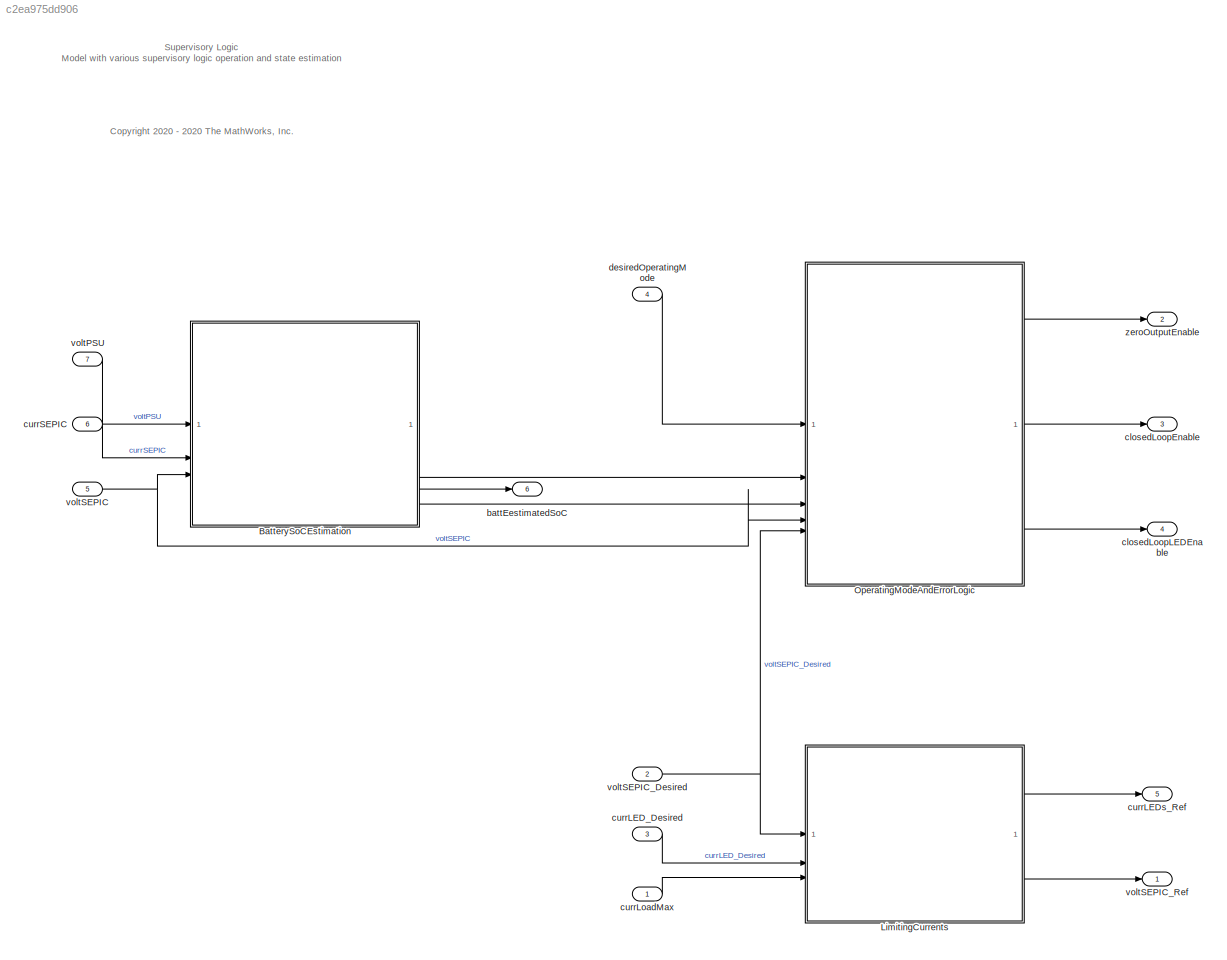
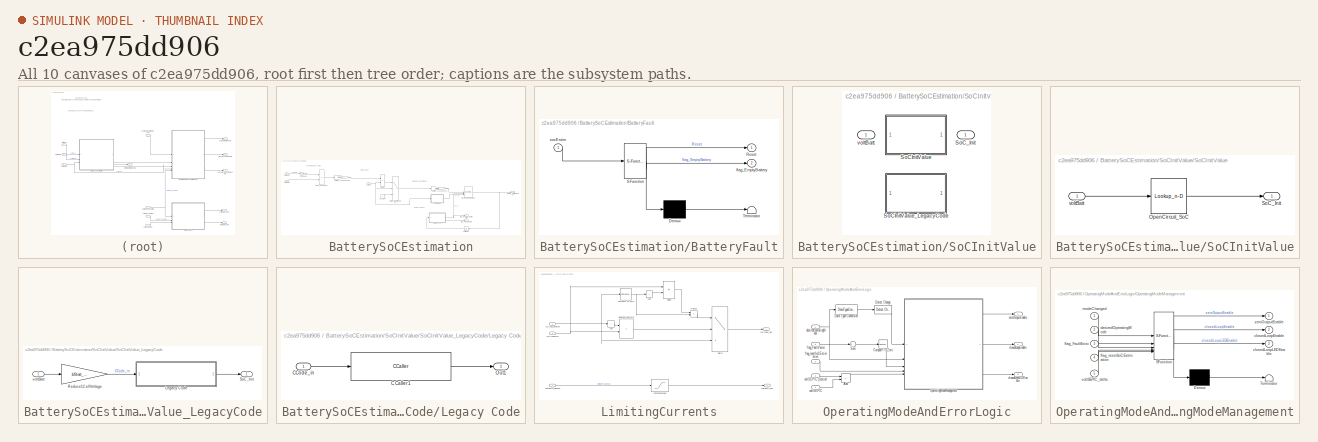
[diagram: thumbnail index - all 10 canvases of the model, root first then tree order]
MODEL slx_c2ea975dd906
KIND model
CONFIG AbsTol = auto
CONFIG EnableMultiTasking = on
CONFIG FixedStep = ts
CONFIG MaxStep = 0.2
CONFIG MinStep = auto
CONFIG RelTol = 1e-3
CONFIG SampleTimeConstraint = Unconstrained
CONFIG SolverName = FixedStepDiscrete
CONFIG StartTime = 0.0
CONFIG StopTime = 12
WORKSPACE source: mxarray member
WORKSPACE TsModel = 0.1
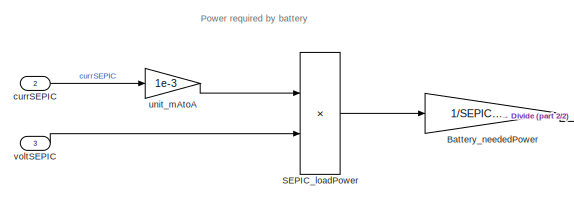
[diagram: BatterySoCEstimation - part 1/2, top left region]
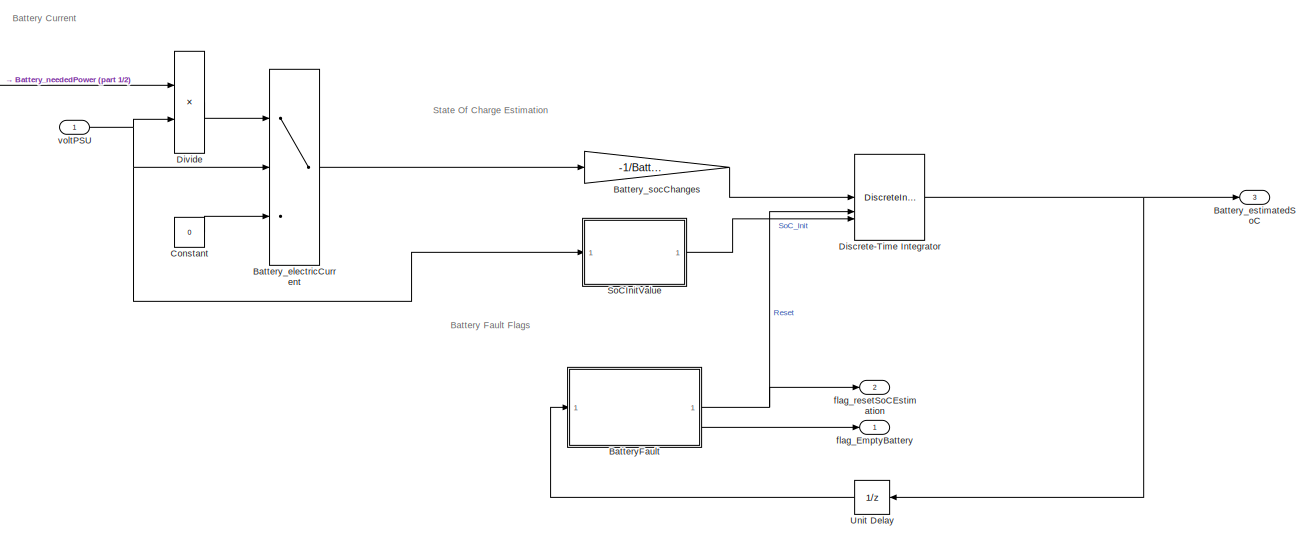
[diagram: BatterySoCEstimation - part 2/2, center side, full height]
BLOCK [SubSystem] BatterySoCEstimation
BLOCK [SubSystem] BatterySoCEstimation/BatteryFault
  ErrorFcn = Stateflow.Translate.translate
  PermitHierarchicalResolution = ExplicitOnly
  SFBlockType = Chart
  TreatAsAtomicUnit = on
BLOCK [Demux] BatterySoCEstimation/BatteryFault/ Demux 
  Outputs = 1
BLOCK [S-Function] BatterySoCEstimation/BatteryFault/ SFunction 
  EnableBusSupport = on
  FunctionName = sf_sfun
  PortCounts = [1 3]
  SFcnIsStateOwnerBlock = off
  SFunctionDeploymentMode = off
  Tag = Stateflow S-Function 1
BLOCK [Terminator] BatterySoCEstimation/BatteryFault/ Terminator 
BLOCK [Outport] BatterySoCEstimation/BatteryFault/Reset
  VectorParamsAs1DForOutWhenUnconnected = off
BLOCK [Outport] BatterySoCEstimation/BatteryFault/flag_EmptyBattery
  Port = 2
BLOCK [Inport] BatterySoCEstimation/BatteryFault/socEstim
BLOCK [Switch] BatterySoCEstimation/Battery_electricCurrent
  Criteria = u2 > Threshold
  InputSameDT = off
  SaturateOnIntegerOverflow = off
BLOCK [Outport] BatterySoCEstimation/Battery_estimatedSoC
  OutDataTypeStr = single
  Port = 3
  PortDimensions = 1
  SamplingMode = Sample based
  SignalType = real
  Unit = 1
  VectorParamsAs1DForOutWhenUnconnected = off
BLOCK [Gain] BatterySoCEstimation/Battery_neededPower
  Gain = 1/SEPIC_Efficiency
BLOCK [Gain] BatterySoCEstimation/Battery_socChanges
  Gain = -1/Batt_MaxCoulomb
BLOCK [Constant] BatterySoCEstimation/Constant
  OutDataTypeStr = single
  Value = 0
BLOCK [DiscreteIntegrator] BatterySoCEstimation/Discrete-Time Integrator
  ExternalReset = falling
  ICPrevOutput = DiscIntNeverNeededParam
  ICPrevScaledInput = DiscIntNeverNeededParam
  InitialConditionSetting = Auto
  InitialConditionSource = external
  LimitOutput = on
  LowerSaturationLimit = 0
  OutDataTypeStr = single
  SampleTime = -1
  UpperSaturationLimit = 1
BLOCK [Product] BatterySoCEstimation/Divide
  Inputs = */
BLOCK [Product] BatterySoCEstimation/SEPIC_loadPower
BLOCK [SubSystem] BatterySoCEstimation/SoCInitValue
  LabelModeActiveChoice = Simulink_LUT
  Variant = on
  VariantControl = Variant1
  VariantControlMode = label
BLOCK [Outport] BatterySoCEstimation/SoCInitValue/ SoC_Init
  VectorParamsAs1DForOutWhenUnconnected = off
BLOCK [SubSystem] BatterySoCEstimation/SoCInitValue/SoCInitValue
  VariantControl = Simulink_LUT
BLOCK [Lookup_n-D] BatterySoCEstimation/SoCInitValue/SoCInitValue/OpenCircuit_SoC
  BreakpointsForDimension1 = Batt_Em0_LUT*Batt_nrCellSeries
  InputPortMap = u0
  InternalRulePriority = Speed
  NumberOfTableDimensions = 1
  OutMax = 1
  OutMin = 0
  RndMeth = Simplest
  Table = Batt_SoC_LUT
BLOCK [Outport] BatterySoCEstimation/SoCInitValue/SoCInitValue/SoC_Init
  VectorParamsAs1DForOutWhenUnconnected = off
BLOCK [Inport] BatterySoCEstimation/SoCInitValue/SoCInitValue/voltBatt
BLOCK [SubSystem] BatterySoCEstimation/SoCInitValue/SoCInitValue_LegacyCode
  VariantControl = CCode_LUT
BLOCK [SubSystem] BatterySoCEstimation/SoCInitValue/SoCInitValue_LegacyCode/Legacy Code
BLOCK [CCaller] BatterySoCEstimation/SoCInitValue/SoCInitValue_LegacyCode/Legacy Code/C Caller1
  FunctionName = EmLiIon_LUT
  PortSpecificationStruct = %)30     .    R ,   8    (     @         %    "     (    !     0         %  0 "0    $    _    07)G3F%M90  4&]R=$YA;64 4V-O<&4     26YD97@     5'EP90      4VEZ90      27-';&]B86P   X    P    !@    @    $          4    (     0    ,    !         !   P!O=70 #@   #     &    "     0         !0    @    !     P    $         $  # &]U=  .    .     8    (    !          %    "     $    &     0         0    !@...<+904ch>
BLOCK [Inport] BatterySoCEstimation/SoCInitValue/SoCInitValue_LegacyCode/Legacy Code/CCode_in
BLOCK [Outport] BatterySoCEstimation/SoCInitValue/SoCInitValue_LegacyCode/Legacy Code/Out1
  VectorParamsAs1DForOutWhenUnconnected = off
BLOCK [Gain] BatterySoCEstimation/SoCInitValue/SoCInitValue_LegacyCode/Reduce1CellVoltage
  Gain = 1/Batt_nrCellSeries
BLOCK [Outport] BatterySoCEstimation/SoCInitValue/SoCInitValue_LegacyCode/SoC_Init
  VectorParamsAs1DForOutWhenUnconnected = off
BLOCK [Inport] BatterySoCEstimation/SoCInitValue/SoCInitValue_LegacyCode/voltBatt
BLOCK [Inport] BatterySoCEstimation/SoCInitValue/voltBatt 
BLOCK [UnitDelay] BatterySoCEstimation/Unit Delay
  HasFrameUpgradeWarning = on
  NameLocation = top
  SampleTime = -1
BLOCK [Inport] BatterySoCEstimation/currSEPIC
  OutDataTypeStr = single
  Port = 2
  PortDimensions = 1
  SamplingMode = Sample based
  SignalType = real
  Unit = mA
BLOCK [Outport] BatterySoCEstimation/flag_EmptyBattery
  OutDataTypeStr = boolean
  PortDimensions = 1
  SamplingMode = Sample based
  SignalType = real
  Unit = 1
  VectorParamsAs1DForOutWhenUnconnected = off
BLOCK [Outport] BatterySoCEstimation/flag_resetSoCEstimation
  OutDataTypeStr = boolean
  Port = 2
  PortDimensions = 1
  SamplingMode = Sample based
  SignalType = real
  Unit = 1
  VectorParamsAs1DForOutWhenUnconnected = off
BLOCK [Gain] BatterySoCEstimation/unit_mAtoA
  Gain = 1e-3
BLOCK [Inport] BatterySoCEstimation/voltPSU
  OutDataTypeStr = single
  PortDimensions = 1
  SamplingMode = Sample based
  SignalType = real
  Unit = V
BLOCK [Inport] BatterySoCEstimation/voltSEPIC
  Port = 3
BLOCK [SubSystem] LimitingCurrents
BLOCK [Sum] LimitingCurrents/Add
  IconShape = rectangular
  Inputs = +
BLOCK [Sum] LimitingCurrents/Add1
  IconShape = rectangular
  Inputs = +
BLOCK [Reference] LimitingCurrents/Compare To Zero  REF=simulink/Logic and Bit
Operations/Compare
To Zero
  SourceBlock = simulink/Logic and Bit\nOperations/Compare\nTo Zero
  SourceType = Compare To Zero
BLOCK [Product] LimitingCurrents/Divide
  Inputs = */
BLOCK [Saturate] LimitingCurrents/LimitingVoltages
  LowerLimit = 0
  UpperLimit = voltSEPICMax
BLOCK [Product] LimitingCurrents/Product
BLOCK [RelationalOperator] LimitingCurrents/Relational Operator
  InputSameDT = off
  Operator = >
  OutDataTypeStr = boolean
  RndMeth = Simplest
BLOCK [Switch] LimitingCurrents/Switch
  Criteria = u2 > Threshold
  InputSameDT = off
  SaturateOnIntegerOverflow = off
BLOCK [Inport] LimitingCurrents/currLED_Desired
  Port = 2
BLOCK [Outport] LimitingCurrents/currLEDs_Ref
BLOCK [Inport] LimitingCurrents/currLoadMax
  Port = 3
BLOCK [Inport] LimitingCurrents/voltSEPIC_Desired
  OutDataTypeStr = single
  PortDimensions = 1
  SamplingMode = Sample based
  SignalType = real
BLOCK [Outport] LimitingCurrents/voltSEPIC_Ref
  OutDataTypeStr = single
  Port = 2
  PortDimensions = 1
  SamplingMode = Sample based
  SignalType = real
BLOCK [SubSystem] OperatingModeAndErrorLogic
BLOCK [Sum] OperatingModeAndErrorLogic/Add
  IconShape = rectangular
  Inputs = +-
BLOCK [Reference] OperatingModeAndErrorLogic/Compare To Zero  REF=simulink/Logic and Bit
Operations/Compare
To Zero
  SourceBlock = simulink/Logic and Bit\nOperations/Compare\nTo Zero
  SourceType = Compare To Zero
BLOCK [DataTypeConversion] OperatingModeAndErrorLogic/Data Type Conversion
  OutDataTypeStr = uint16
  RndMeth = Floor
  SaturateOnIntegerOverflow = off
BLOCK [Reference] OperatingModeAndErrorLogic/Detect Change  REF=simulink/Logic and Bit
Operations/Detect
Change
  SourceBlock = simulink/Logic and Bit\nOperations/Detect\nChange
  SourceType = Detect Change
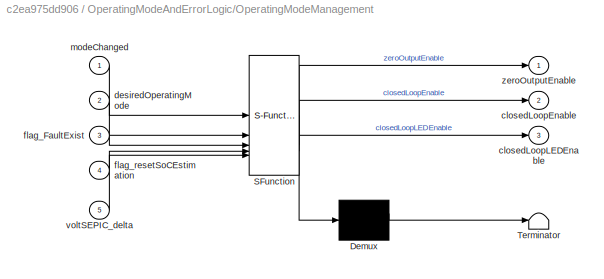
BLOCK [SubSystem] OperatingModeAndErrorLogic/OperatingModeManagement
  ErrorFcn = Stateflow.Translate.translate
  PermitHierarchicalResolution = ExplicitOnly
  SFBlockType = Chart
  TreatAsAtomicUnit = on
BLOCK [Demux] OperatingModeAndErrorLogic/OperatingModeManagement/ Demux 
  Outputs = 1
BLOCK [S-Function] OperatingModeAndErrorLogic/OperatingModeManagement/ SFunction 
  EnableBusSupport = on
  FunctionName = sf_sfun
  PortCounts = [5 4]
  SFcnIsStateOwnerBlock = off
  SFunctionDeploymentMode = off
  Tag = Stateflow S-Function 2
BLOCK [Terminator] OperatingModeAndErrorLogic/OperatingModeManagement/ Terminator 
BLOCK [Outport] OperatingModeAndErrorLogic/OperatingModeManagement/closedLoopEnable
  Port = 2
BLOCK [Outport] OperatingModeAndErrorLogic/OperatingModeManagement/closedLoopLEDEnable
  Port = 3
BLOCK [Inport] OperatingModeAndErrorLogic/OperatingModeManagement/desiredOperatingMode
  Port = 2
BLOCK [Inport] OperatingModeAndErrorLogic/OperatingModeManagement/flag_FaultExist
  Port = 3
BLOCK [Inport] OperatingModeAndErrorLogic/OperatingModeManagement/flag_resetSoCEstimation
  Port = 4
BLOCK [Inport] OperatingModeAndErrorLogic/OperatingModeManagement/modeChanged
BLOCK [Inport] OperatingModeAndErrorLogic/OperatingModeManagement/voltSEPIC_delta
  Port = 5
BLOCK [Outport] OperatingModeAndErrorLogic/OperatingModeManagement/zeroOutputEnable
BLOCK [Sum] OperatingModeAndErrorLogic/Sum
  Inputs = +
BLOCK [Outport] OperatingModeAndErrorLogic/closedLoopEnable
  OutDataTypeStr = boolean
  Port = 2
  PortDimensions = 1
  SamplingMode = Sample based
  SignalType = real
  Unit = 1
BLOCK [Outport] OperatingModeAndErrorLogic/closedLoopLEDEnable
  OutDataTypeStr = boolean
  Port = 3
  PortDimensions = 1
  SamplingMode = Sample based
  SignalType = real
  Unit = 1
BLOCK [Inport] OperatingModeAndErrorLogic/desiredOperatingMode
BLOCK [Inport] OperatingModeAndErrorLogic/flag_FaultVector
  Port = 2
BLOCK [Inport] OperatingModeAndErrorLogic/flag_resetSoCEstimation
  Port = 3
BLOCK [Inport] OperatingModeAndErrorLogic/voltSEPIC
  Port = 4
BLOCK [Inport] OperatingModeAndErrorLogic/voltSEPIC_Desired
  Port = 5
BLOCK [Outport] OperatingModeAndErrorLogic/zeroOutputEnable
  OutDataTypeStr = boolean
  PortDimensions = 1
  SamplingMode = Sample based
  SignalType = real
  Unit = 1
BLOCK [Outport] battEestimatedSoC
  OutDataTypeStr = single
  Port = 6
  PortDimensions = 1
  SampleTime = TsModel
  SamplingMode = Sample based
  SignalType = real
BLOCK [Outport] closedLoopEnable
  OutDataTypeStr = boolean
  Port = 3
  PortDimensions = 1
  SampleTime = TsModel
  SamplingMode = Sample based
  SignalType = real
  Unit = 1
BLOCK [Outport] closedLoopLEDEnable
  OutDataTypeStr = boolean
  Port = 4
  PortDimensions = 1
  SampleTime = TsModel
  SamplingMode = Sample based
  SignalType = real
  Unit = 1
BLOCK [Inport] currLED_Desired
  OutDataTypeStr = single
  Port = 3
  PortDimensions = [6 1]
  SampleTime = TsModel
  SamplingMode = Sample based
  SignalType = real
  Unit = mA
BLOCK [Outport] currLEDs_Ref
  OutDataTypeStr = single
  Port = 5
  PortDimensions = [6 1 ]
  SampleTime = TsModel
  SamplingMode = Sample based
  SignalType = real
  Unit = mA
BLOCK [Inport] currLoadMax
  OutDataTypeStr = single
  PortDimensions = 1
  SampleTime = TsModel
  SamplingMode = Sample based
  SignalType = real
BLOCK [Inport] currSEPIC
  OutDataTypeStr = single
  Port = 6
  PortDimensions = 1
  SampleTime = TsModel
  SamplingMode = Sample based
  SignalType = real
  Unit = mA
BLOCK [Inport] desiredOperatingMode
  OutDataTypeStr = Enum: operatingMode
  Port = 4
  PortDimensions = 1
  SampleTime = TsModel
  SamplingMode = Sample based
  SignalType = real
BLOCK [Inport] voltPSU
  OutDataTypeStr = single
  Port = 7
  PortDimensions = 1
  SampleTime = TsModel
  SamplingMode = Sample based
  SignalType = real
  Unit = V
BLOCK [Inport] voltSEPIC
  OutDataTypeStr = single
  Port = 5
  PortDimensions = 1
  SampleTime = TsModel
  SamplingMode = Sample based
  SignalType = real
  Unit = V
BLOCK [Inport] voltSEPIC_Desired
  OutDataTypeStr = single
  Port = 2
  PortDimensions = 1
  SampleTime = TsModel
  SamplingMode = Sample based
  SignalType = real
BLOCK [Outport] voltSEPIC_Ref
  OutDataTypeStr = single
  PortDimensions = 1
  SampleTime = TsModel
  SamplingMode = Sample based
  SignalType = real
  Unit = V
BLOCK [Outport] zeroOutputEnable
  OutDataTypeStr = boolean
  Port = 2
  PortDimensions = 1
  SampleTime = TsModel
  SamplingMode = Sample based
  SignalType = real
  Unit = 1
ANNOTATION (root): <copyright redacted>
ANNOTATION (root): Supervisory Logic Model with various supervisory logic operation and state estimation
ANNOTATION BatterySoCEstimation: Battery Current
ANNOTATION BatterySoCEstimation: Battery Fault Flags
ANNOTATION BatterySoCEstimation: Power required by battery
ANNOTATION BatterySoCEstimation: State Of Charge Estimation
NET BatterySoCEstimation/BatteryFault:1 -> BatterySoCEstimation/Discrete-Time Integrator:2, BatterySoCEstimation/flag_resetSoCEstimation:1
LINE BatterySoCEstimation/BatteryFault:2 -> BatterySoCEstimation/flag_EmptyBattery:1
LINE BatterySoCEstimation/Battery_electricCurrent:1 -> BatterySoCEstimation/Battery_socChanges:1
LINE BatterySoCEstimation/Battery_neededPower:1 -> BatterySoCEstimation/Divide:1
LINE BatterySoCEstimation/Battery_socChanges:1 -> BatterySoCEstimation/Discrete-Time Integrator:1
LINE BatterySoCEstimation/Constant:1 -> BatterySoCEstimation/Battery_electricCurrent:3
NET BatterySoCEstimation/Discrete-Time Integrator:1 -> BatterySoCEstimation/Battery_estimatedSoC:1, BatterySoCEstimation/Unit Delay:1
LINE BatterySoCEstimation/Divide:1 -> BatterySoCEstimation/Battery_electricCurrent:1
LINE BatterySoCEstimation/SEPIC_loadPower:1 -> BatterySoCEstimation/Battery_neededPower:1
LINE BatterySoCEstimation/SoCInitValue/SoCInitValue/OpenCircuit_SoC:1 -> BatterySoCEstimation/SoCInitValue/SoCInitValue/SoC_Init:1
LINE BatterySoCEstimation/SoCInitValue/SoCInitValue/voltBatt:1 -> BatterySoCEstimation/SoCInitValue/SoCInitValue/OpenCircuit_SoC:1
LINE BatterySoCEstimation/SoCInitValue/SoCInitValue_LegacyCode/Legacy Code/C Caller1:1 -> BatterySoCEstimation/SoCInitValue/SoCInitValue_LegacyCode/Legacy Code/Out1:1
LINE BatterySoCEstimation/SoCInitValue/SoCInitValue_LegacyCode/Legacy Code/CCode_in:1 -> BatterySoCEstimation/SoCInitValue/SoCInitValue_LegacyCode/Legacy Code/C Caller1:1
LINE BatterySoCEstimation/SoCInitValue/SoCInitValue_LegacyCode/Legacy Code:1 -> BatterySoCEstimation/SoCInitValue/SoCInitValue_LegacyCode/SoC_Init:1
LINE BatterySoCEstimation/SoCInitValue/SoCInitValue_LegacyCode/Reduce1CellVoltage:1 -> BatterySoCEstimation/SoCInitValue/SoCInitValue_LegacyCode/Legacy Code:1
LINE BatterySoCEstimation/SoCInitValue/SoCInitValue_LegacyCode/voltBatt:1 -> BatterySoCEstimation/SoCInitValue/SoCInitValue_LegacyCode/Reduce1CellVoltage:1
LINE BatterySoCEstimation/SoCInitValue:1 -> BatterySoCEstimation/Discrete-Time Integrator:3
LINE BatterySoCEstimation/Unit Delay:1 -> BatterySoCEstimation/BatteryFault:1
LINE BatterySoCEstimation/currSEPIC:1 -> BatterySoCEstimation/unit_mAtoA:1
LINE BatterySoCEstimation/unit_mAtoA:1 -> BatterySoCEstimation/SEPIC_loadPower:1
NET BatterySoCEstimation/voltPSU:1 -> BatterySoCEstimation/Battery_electricCurrent:2, BatterySoCEstimation/Divide:2, BatterySoCEstimation/SoCInitValue:1
LINE BatterySoCEstimation/voltSEPIC:1 -> BatterySoCEstimation/SEPIC_loadPower:2
LINE BatterySoCEstimation:1 -> OperatingModeAndErrorLogic:2
LINE BatterySoCEstimation:2 -> OperatingModeAndErrorLogic:3
LINE BatterySoCEstimation:3 -> battEestimatedSoC:1
LINE LimitingCurrents/Add1:1 -> LimitingCurrents/Divide:2
LINE LimitingCurrents/Add:1 -> LimitingCurrents/Relational Operator:1
NET LimitingCurrents/Compare To Zero:1 -> LimitingCurrents/Add1:1, LimitingCurrents/Product:2
LINE LimitingCurrents/Divide:1 -> LimitingCurrents/Product:1
LINE LimitingCurrents/LimitingVoltages:1 -> LimitingCurrents/voltSEPIC_Ref:1
LINE LimitingCurrents/Product:1 -> LimitingCurrents/Switch:1
LINE LimitingCurrents/Relational Operator:1 -> LimitingCurrents/Switch:2
LINE LimitingCurrents/Switch:1 -> LimitingCurrents/currLEDs_Ref:1
NET LimitingCurrents/currLED_Desired:1 -> LimitingCurrents/Add:1, LimitingCurrents/Compare To Zero:1, LimitingCurrents/Switch:3
NET LimitingCurrents/currLoadMax:1 -> LimitingCurrents/Divide:1, LimitingCurrents/Relational Operator:2
LINE LimitingCurrents/voltSEPIC_Desired:1 -> LimitingCurrents/LimitingVoltages:1
LINE LimitingCurrents:1 -> currLEDs_Ref:1
LINE LimitingCurrents:2 -> voltSEPIC_Ref:1
LINE OperatingModeAndErrorLogic/Add:1 -> OperatingModeAndErrorLogic/OperatingModeManagement:5
LINE OperatingModeAndErrorLogic/Compare To Zero:1 -> OperatingModeAndErrorLogic/OperatingModeManagement:3
LINE OperatingModeAndErrorLogic/Data Type Conversion:1 -> OperatingModeAndErrorLogic/Detect Change:1
LINE OperatingModeAndErrorLogic/Detect Change:1 -> OperatingModeAndErrorLogic/OperatingModeManagement:1
LINE OperatingModeAndErrorLogic/OperatingModeManagement:1 -> OperatingModeAndErrorLogic/zeroOutputEnable:1
LINE OperatingModeAndErrorLogic/OperatingModeManagement:2 -> OperatingModeAndErrorLogic/closedLoopEnable:1
LINE OperatingModeAndErrorLogic/OperatingModeManagement:3 -> OperatingModeAndErrorLogic/closedLoopLEDEnable:1
LINE OperatingModeAndErrorLogic/Sum:1 -> OperatingModeAndErrorLogic/Compare To Zero:1
NET OperatingModeAndErrorLogic/desiredOperatingMode:1 -> OperatingModeAndErrorLogic/Data Type Conversion:1, OperatingModeAndErrorLogic/OperatingModeManagement:2
LINE OperatingModeAndErrorLogic/flag_FaultVector:1 -> OperatingModeAndErrorLogic/Sum:1
LINE OperatingModeAndErrorLogic/flag_resetSoCEstimation:1 -> OperatingModeAndErrorLogic/OperatingModeManagement:4
LINE OperatingModeAndErrorLogic/voltSEPIC:1 -> OperatingModeAndErrorLogic/Add:2
LINE OperatingModeAndErrorLogic/voltSEPIC_Desired:1 -> OperatingModeAndErrorLogic/Add:1
LINE OperatingModeAndErrorLogic:1 -> zeroOutputEnable:1
LINE OperatingModeAndErrorLogic:2 -> closedLoopEnable:1
LINE OperatingModeAndErrorLogic:3 -> closedLoopLEDEnable:1
LINE currLED_Desired:1 -> LimitingCurrents:2
LINE currLoadMax:1 -> LimitingCurrents:3
LINE currSEPIC:1 -> BatterySoCEstimation:2
LINE desiredOperatingMode:1 -> OperatingModeAndErrorLogic:1
LINE voltPSU:1 -> BatterySoCEstimation:1
NET voltSEPIC:1 -> BatterySoCEstimation:3, OperatingModeAndErrorLogic:4
NET voltSEPIC_Desired:1 -> LimitingCurrents:1, OperatingModeAndErrorLogic:5
note: NET lines group one-source signal fan-out (src -> all destinations, sorted); 1:1 wires keep LINE
CHART Test Sequence states=13 transitions=13
  STATE_LABEL 'step_1\nflag_resetSoCEstimation=true;\ndesiredOperatingMode = AllClosedLoop;\nflag_FaultVector =[false false false];'
  STATE_LABEL 'verifyStep1\nverify(zeroOutputEnable ==true)'
  STATE_LABEL 'step_2\nflag_resetSoCEstimation=false;'
  STATE_LABEL 'step_2_1\ndesiredOperatingMode =AllOpenLoop;'
  STATE_LABEL 'verifyStep2_1\nverify((closedLoopEnable && closedLoopLEDEnable) == false )\nverify(zeroOutputEnable==false)'
  STATE_LABEL 'step_2_2\ndesiredOperatingMode =VoltClosed_CurrOpen;'
  STATE_LABEL 'verifyStep2_2\nverify(closedLoopEnable==true &&closedLoopLEDEnable==false)\nverify(zeroOutputEnable==false)'
  STATE_LABEL 'step_2_3\ndesiredOperatingMode =VoltOpen_CurrClosed;'
  STATE_LABEL 'verifyStep2_3\nverify(closedLoopEnable==false &&closedLoopLEDEnable == true)\nverify(zeroOutputEnable==false)'
  STATE_LABEL 'step_2_4\ndesiredOperatingMode =AllClosedLoop;'
  STATE_LABEL 'verifyStep2_4\nverify(closedLoopEnable&&closedLoopLEDEnable == true)\nverify(zeroOutputEnable==false)'
  STATE_LABEL 'step_3\n\nflag_FaultVector =[true true true];\n'
  STATE_LABEL 'verifyStep3\nverify(zeroOutputEnable==true)'
CHART BatterySoCEstimation/BatteryFault states=4 transitions=4
  STATE_LABEL 'Resetting_Integrator\nen:Reset=true;\nflag_EmptyBattery=false;\nex:Reset=false;'
  STATE_LABEL 'running\n\n'
  STATE_LABEL 'Normal\ndu:flag_EmptyBattery=false;'
  STATE_LABEL 'Battery_Empty\nen:flag_EmptyBattery=true;'
  STATE_LABEL '[socEstim<=0.05]'
  STATE_LABEL 'Normal\ndu:flag_EmptyBattery=false;'
  STATE_LABEL 'Battery_Empty\nen:flag_EmptyBattery=true;'
CHART OperatingModeAndErrorLogic/OperatingModeManagement states=15 transitions=26
  STATE_LABEL 'Operation\n'
  STATE_LABEL 'OperatingMode'
  STATE_LABEL 'AllOpenLoop\nen:closedLoopEnable=false;\nen:closedLoopLEDEnable=false;'
  STATE_LABEL 'VoltOpen_CurrClosed\nen:closedLoopEnable=false;\nen:closedLoopLEDEnable=true;'
  STATE_LABEL 'VoltClosed_CurrOpen\nen:closedLoopEnable=true;\nen:closedLoopLEDEnable=false;'
  STATE_LABEL 'AllClosedLoop\nen:closedLoopEnable=true;\nen:closedLoopLEDEnable=true;'
  STATE_LABEL 'AutomaticOperation\n'
  STATE_LABEL 'AllOpenLoop\nen:closedLoopEnable=false;\nen:closedLoopLEDEnable=false;\n'
  STATE_LABEL 'WaitingForVoltageSettling\nen:closedLoopEnable=true;\nen:closedLoopLEDEnable=false;\n'
  STATE_LABEL 'AllClosedLoop\nen:closedLoopEnable=true;\nen:closedLoopLEDEnable=true;'
  STATE_LABEL '[abs(voltSEPIC_delta) <=1.5]'
  STATE_LABEL '[abs(voltSEPIC_delta) >2]'
  STATE_LABEL '[after(1,tick)]'
  STATE_LABEL 'NoOutput\nen:zeroOutputEnable=true;'
  STATE_LABEL '[desiredOperatingMode==AllOpenLoop]'
  STATE_LABEL '[modeChanged]'
  STATE_LABEL '[desiredOperatingMode==VoltOpen_CurrClosed]'
  STATE_LABEL '[modeChanged]'
  STATE_LABEL '[modeChanged]'
  STATE_LABEL '[desiredOperatingMode==VoltClosed_CurrOpen]'
  STATE_LABEL '[desiredOperatingMode==AllClosedLoop]'
  STATE_LABEL '[modeChanged]'
  STATE_LABEL '[desiredOperatingMode==AutomaticOperation]'
  STATE_LABEL '[modeChanged]'
  STATE_LABEL '[modeChanged]'
  STATE_LABEL 'CheckingFault'
  STATE_LABEL 'SystemKO\nen:zeroOutputEnable=true;'
  STATE_LABEL 'SystemOK\nen:zeroOutputEnable=false;'
  STATE_LABEL '[flag_FaultExist]'
  STATE_LABEL '[~flag_FaultExist]'
  STATE_LABEL 'OperatingMode'
  STATE_LABEL 'AllOpenLoop\nen:closedLoopEnable=false;\nen:closedLoopLEDEnable=false;'
  STATE_LABEL 'VoltOpen_CurrClosed\nen:closedLoopEnable=false;\nen:closedLoopLEDEnable=true;'
  STATE_LABEL 'VoltClosed_CurrOpen\nen:closedLoopEnable=true;\nen:closedLoopLEDEnable=false;'
  STATE_LABEL 'AllClosedLoop\nen:closedLoopEnable=true;\nen:closedLoopLEDEnable=true;'
  STATE_LABEL 'AutomaticOperation\n'
  STATE_LABEL 'AllOpenLoop\nen:closedLoopEnable=false;\nen:closedLoopLEDEnable=false;\n'
  STATE_LABEL 'WaitingForVoltageSettling\nen:closedLoopEnable=true;\nen:closedLoopLEDEnable=false;\n'
  STATE_LABEL 'AllClosedLoop\nen:closedLoopEnable=true;\nen:closedLoopLEDEnable=true;'
  STATE_LABEL '[abs(voltSEPIC_delta) <=1.5]'
CHART  states=0 transitions=0
CHART  states=0 transitions=0
